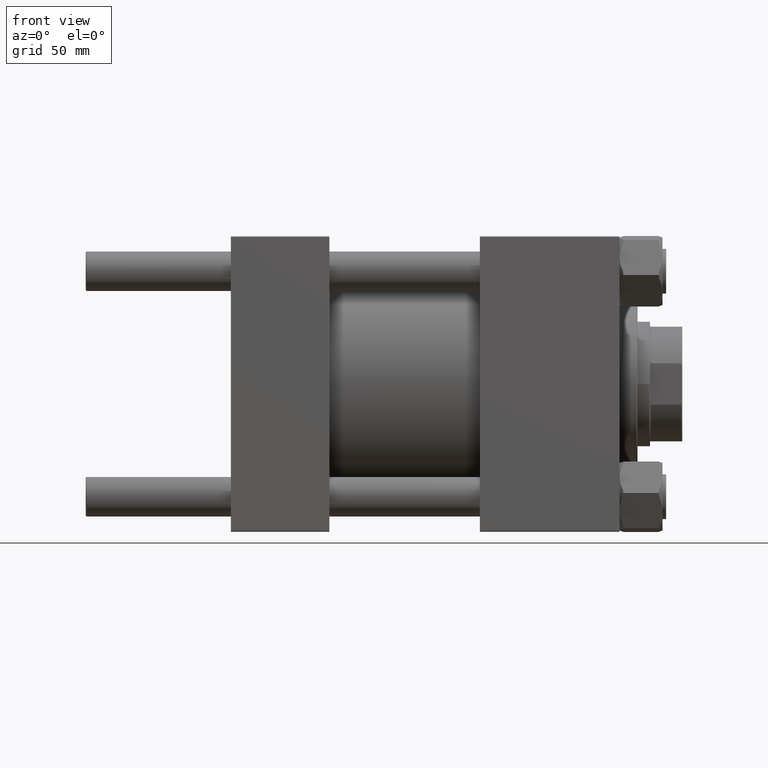
[diagram: clean part render]
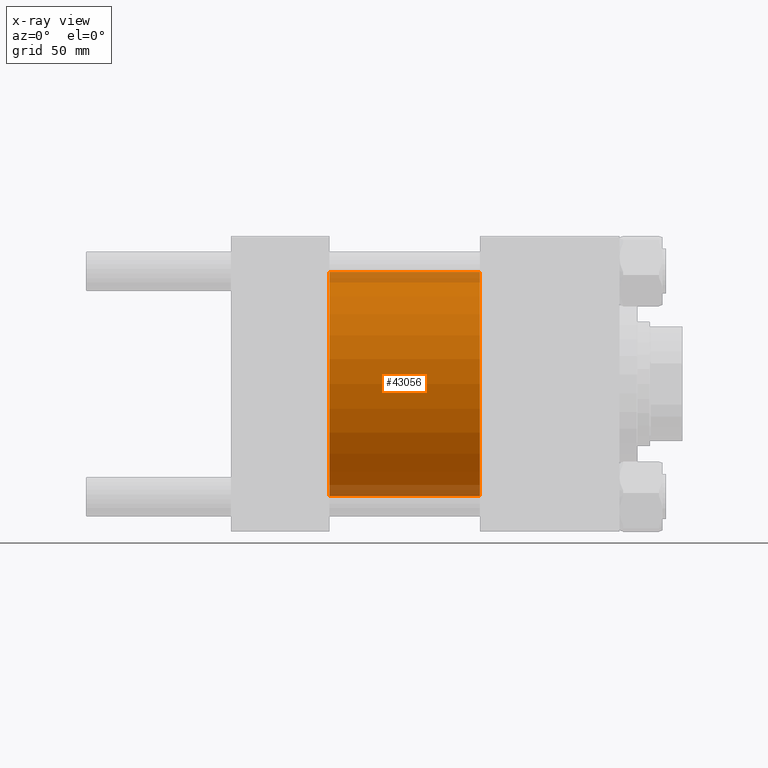
[diagram: x-ray — body ghosted, one internal face saturated and labeled with its STEP entity id]
A machine part, front view, then the same camera in x-ray: the body is ghosted and one INTERNAL B-rep face — a face not visible from any outside direction — is saturated and labeled: STEP entity #43056.
In plain terms, the highlighted cylindrical surface (partial cylindrical patch) has radius 62.5 mm, axis along (-1, -0, -0).
Its self-contained STEP definition (entity closure, byte-faithful):
#2876 = DIRECTION ( 'NONE',  ( 1.000000000000000000, 0.000000000000000000, 0.000000000000000000 ) ) ;
#5262 = EDGE_CURVE ( 'NONE', #27959, #14690, #48889, .T. ) ;
#5561 = DIRECTION ( 'NONE',  ( 1.000000000000000000, 0.000000000000000000, 0.000000000000000000 ) ) ;
#5724 = EDGE_CURVE ( 'NONE', #27959, #49686, #32368, .T. ) ;
#5873 = VERTEX_POINT ( 'NONE', #38955 ) ;
#6943 = DIRECTION ( 'NONE',  ( 0.000000000000000000, 0.000000000000000000, -1.000000000000000000 ) ) ;
#7787 = EDGE_LOOP ( 'NONE', ( #26335, #16975, #8885, #33064 ) ) ;
#8885 = ORIENTED_EDGE ( 'NONE', *, *, #47117, .F. ) ;
#10009 = CARTESIAN_POINT ( 'NONE',  ( 139.0000000000000000, 0.000000000000000000, 0.000000000000000000 ) ) ;
#13203 = CARTESIAN_POINT ( 'NONE',  ( 139.0000000000000000, 7.654042494670956226E-15, -62.50000000000000000 ) ) ;
#13874 = VECTOR ( 'NONE', #17038, 1000.000000000000000 ) ;
#14690 = VERTEX_POINT ( 'NONE', #49713 ) ;
#15464 = DIRECTION ( 'NONE',  ( -1.000000000000000000, -0.000000000000000000, -0.000000000000000000 ) ) ;
#16975 = ORIENTED_EDGE ( 'NONE', *, *, #47248, .T. ) ;
#17038 = DIRECTION ( 'NONE',  ( -1.000000000000000000, -0.000000000000000000, -0.000000000000000000 ) ) ;
#17080 = AXIS2_PLACEMENT_3D ( 'NONE', #10009, #2876, #6943 ) ;
#18990 = AXIS2_PLACEMENT_3D ( 'NONE', #50422, #15464, #31036 ) ;
#20151 = CARTESIAN_POINT ( 'NONE',  ( 55.00000000000000000, 0.000000000000000000, 62.50000000000000000 ) ) ;
#26335 = ORIENTED_EDGE ( 'NONE', *, *, #5262, .T. ) ;
#27526 = CARTESIAN_POINT ( 'NONE',  ( 55.00000000000000000, 0.000000000000000000, 0.000000000000000000 ) ) ;
#27959 = VERTEX_POINT ( 'NONE', #47218 ) ;
#31036 = DIRECTION ( 'NONE',  ( 0.000000000000000000, 0.000000000000000000, 1.000000000000000000 ) ) ;
#32368 = LINE ( 'NONE', #47926, #13874 ) ;
#33064 = ORIENTED_EDGE ( 'NONE', *, *, #5724, .F. ) ;
#36952 = CIRCLE ( 'NONE', #45108, 62.50000000000000000 ) ;
#37792 = VECTOR ( 'NONE', #44334, 1000.000000000000000 ) ;
#38955 = CARTESIAN_POINT ( 'NONE',  ( 55.00000000000000000, 7.654042494670956226E-15, -62.50000000000000000 ) ) ;
#41006 = DIRECTION ( 'NONE',  ( 0.000000000000000000, 0.000000000000000000, -1.000000000000000000 ) ) ;
#43056 = ADVANCED_FACE ( 'NONE', ( #49920 ), #47095, .F. ) ;
#44334 = DIRECTION ( 'NONE',  ( -1.000000000000000000, -0.000000000000000000, -0.000000000000000000 ) ) ;
#45108 = AXIS2_PLACEMENT_3D ( 'NONE', #27526, #5561, #41006 ) ;
#47095 = CYLINDRICAL_SURFACE ( 'NONE', #18990, 62.50000000000000000 ) ;
#47117 = EDGE_CURVE ( 'NONE', #49686, #5873, #36952, .T. ) ;
#47218 = CARTESIAN_POINT ( 'NONE',  ( 139.0000000000000000, 0.000000000000000000, 62.50000000000000000 ) ) ;
#47248 = EDGE_CURVE ( 'NONE', #14690, #5873, #48168, .T. ) ;
#47926 = CARTESIAN_POINT ( 'NONE',  ( 139.0000000000000000, 0.000000000000000000, 62.50000000000000000 ) ) ;
#48168 = LINE ( 'NONE', #13203, #37792 ) ;
#48889 = CIRCLE ( 'NONE', #17080, 62.50000000000000000 ) ;
#49686 = VERTEX_POINT ( 'NONE', #20151 ) ;
#49713 = CARTESIAN_POINT ( 'NONE',  ( 139.0000000000000000, 7.654042494670956226E-15, -62.50000000000000000 ) ) ;
#49920 = FACE_OUTER_BOUND ( 'NONE', #7787, .T. ) ;
#50422 = CARTESIAN_POINT ( 'NONE',  ( 139.0000000000000000, 0.000000000000000000, 0.000000000000000000 ) ) ;